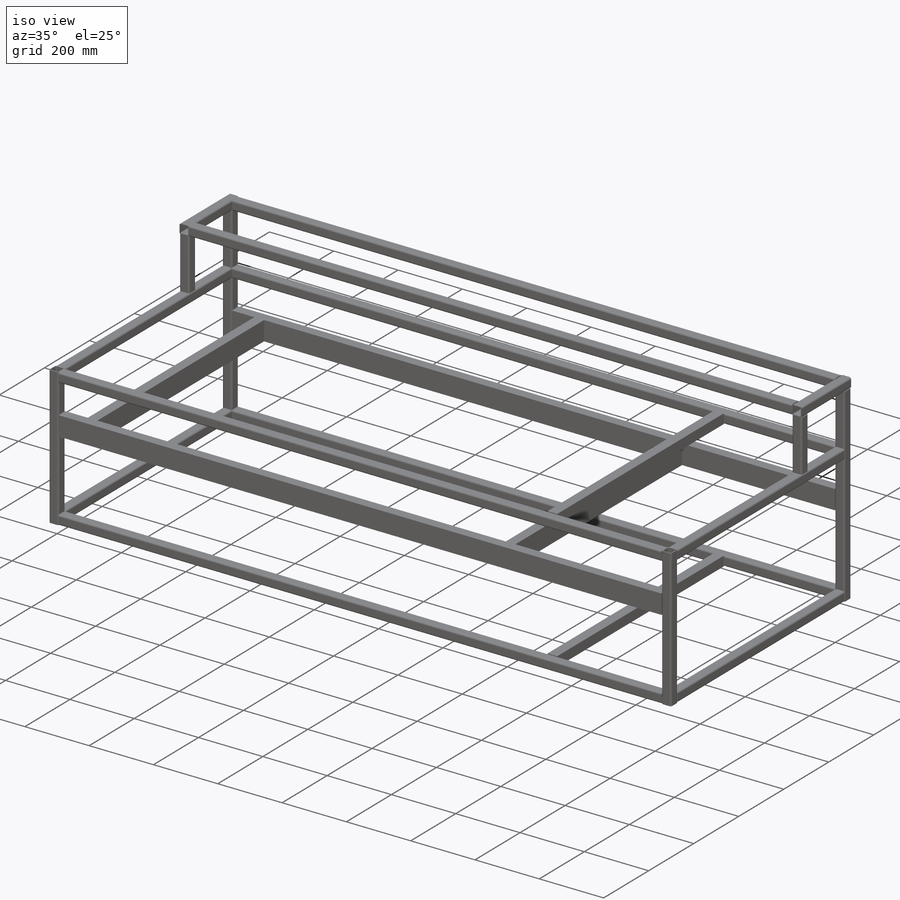
[diagram: iso view]
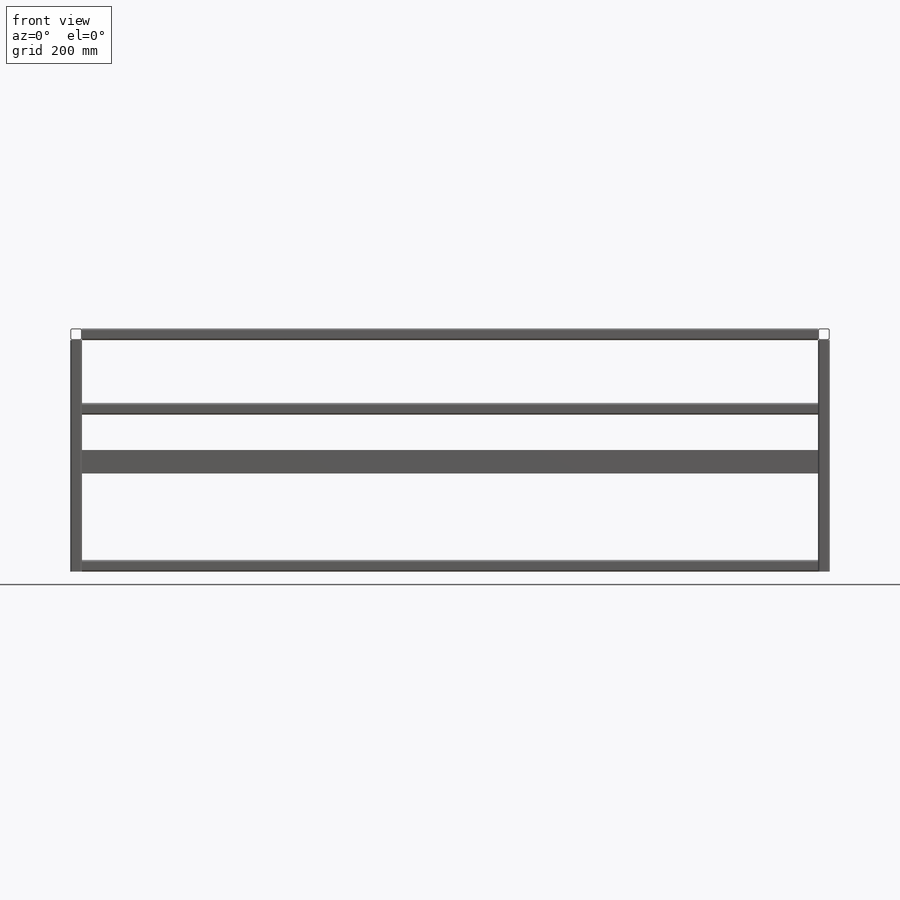
[diagram: front view]
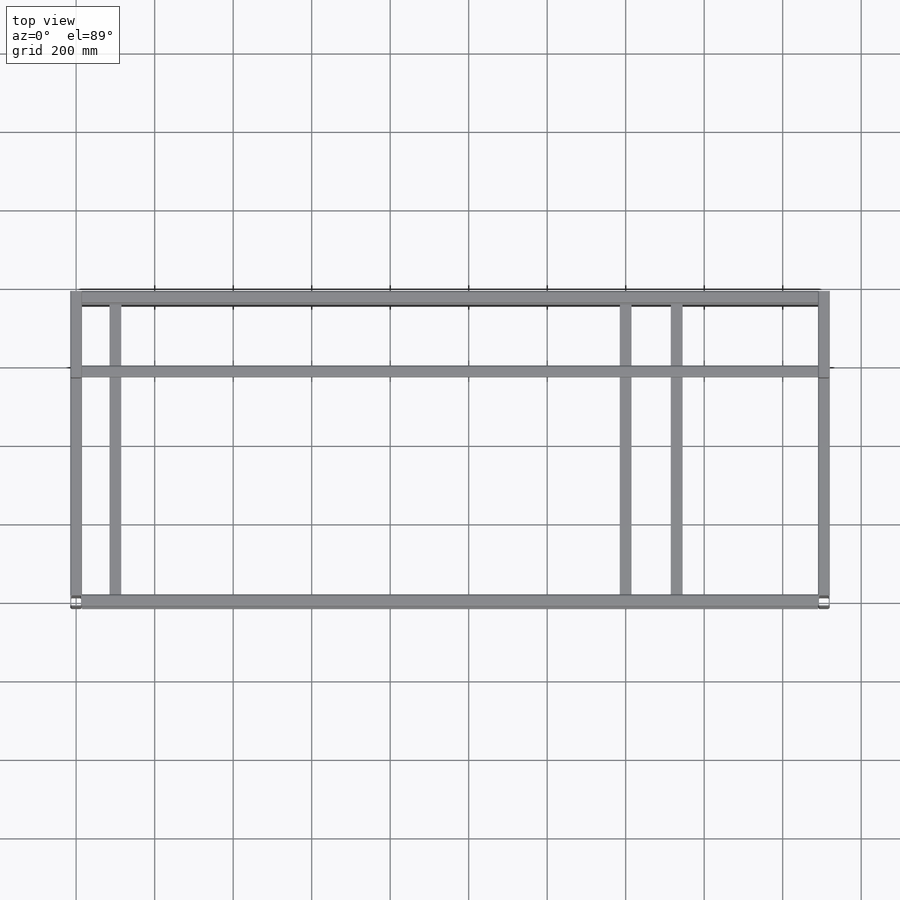
[diagram: top view]
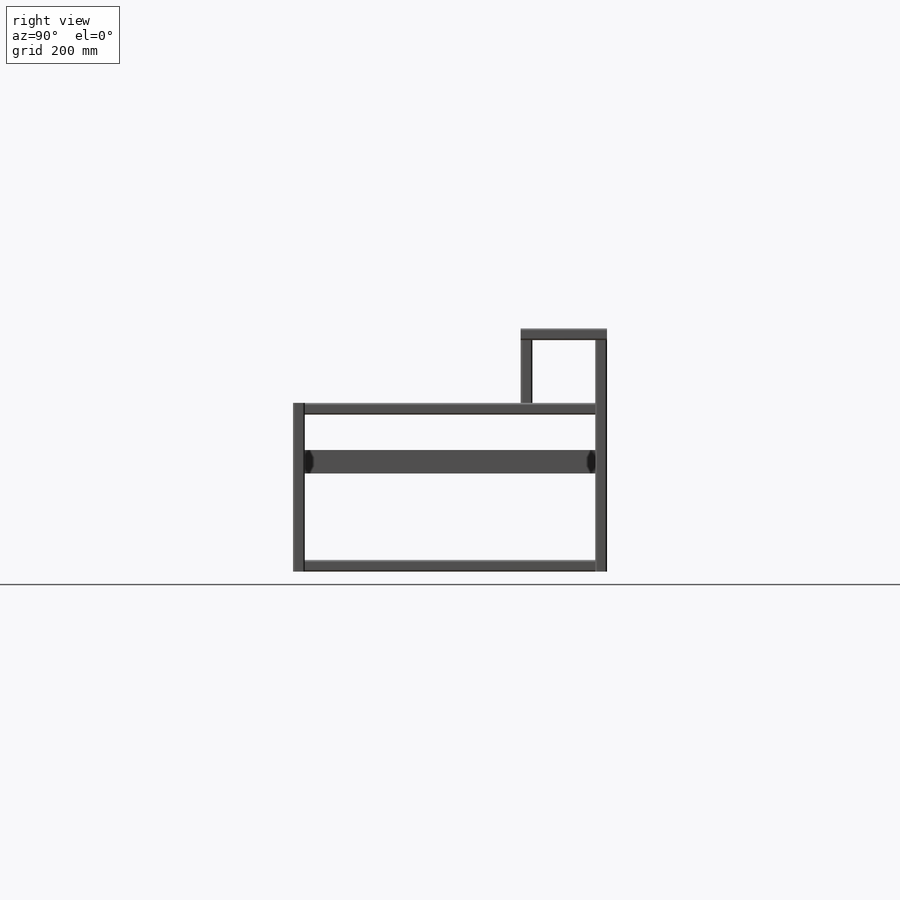
[diagram: right view]
SOLIDWORKS PART (.sldprt)
format: sldprt  version: not decoded by parser v0  size: 775,168 bytes
history: native  units: mm
features: sketch x9, plane x4, extrude x4, material x1, pattern_linear x1 + 8 further entries (+11 scaffold rows collapsed)
feature tree (38):
  scaffold x11  (default folders/planes/origin — collapsed)
  material  "Material <not specified>"
  "Cut-List-Item2"
  "Cut-List-Item3"
  "Cut-List-Item4"
  "Cut-List-Item5"
  "Cut-List-Item6"
  "Cut-List-Item7"
  "Cut-List-Item8"
  "Cut-List-Item9"
  sketch  "3DSketch1"  dims[c1.D1=~86.597281mm c1.D2=~86.597281mm c2.D1=160.0mm]
  plane  "Plane2"
  sketch  "Sketch1"  dims[c1.D1=6.35mm c1.D2=6.35mm c1.D3=6.35mm c1.D4=6.35mm c1.D5=6.35mm c1.D6=6.35mm c1.D7=6.35mm c1.D8=6.35mm c2.D1=6.604mm c2.D2=6.604mm c2.D3=6.604mm c2.D4=6.604mm c3.D1=5.2mm c3.Thickness=2.6mm c3.D4=12.9032mm c3.D5=12.9286mm c3.V_leg=30.0mm c3.H_leg=20.0mm c4.D4=50.3428mm c4.D5=50.8508mm c5.D4=~41.274964mm c5.D5=~41.274964mm]
  plane  "Plane3"
  sketch  "Sketch2"  dims[D1=30.0mm D2=60.0mm D3=120.0mm]
  extrude  "Boss-Extrude1"  [1 undecoded]
  plane  "Plane4"
  sketch  "Sketch3"  dims[D1=60.0mm D2=30.0mm D3=100.0mm D4=1300.0mm]
  extrude  "Boss-Extrude2"  [1 undecoded]
  sketch  "Sketch4"  dims[D1=0.0mm D2=0.0mm]
  extrude  "Boss-Extrude3"  Depth=160mm
  pattern_linear  "LPattern1"  Count1=2 Count2=1 Spacing1=190mm Spacing2=10mm
  sketch  "Sketch12"
  sketch  "Structural Member3"
  plane  "Plane6"
  sketch  "Sketch13"  dims[c1.D1=6.35mm c1.D2=6.35mm c1.D3=6.35mm c1.D4=6.35mm c1.D5=6.35mm c1.D6=6.35mm c1.D7=6.35mm c1.D8=6.35mm c2.D1=6.604mm c2.D2=6.604mm c2.D3=6.604mm c2.D4=6.604mm c3.D1=5.2mm c3.Thickness=2.6mm c3.D4=12.9032mm c3.D5=12.9286mm c3.V_leg=30.0mm c3.H_leg=20.0mm c4.D4=50.3428mm c4.D5=50.8508mm c5.D4=~41.274964mm c5.D5=~41.274964mm]
  sketch  "Sketch14"  dims[D1=100.0mm D2=30.0mm]
  extrude  "Boss-Extrude4"  [1 undecoded]
decode coverage: 9 of 14 modeling features carry decoded parameters; 8 rows unclassified (native names shown)
note: ~ marks probable driven/reference dimensions
note: 3 parameter values undecoded
summary: no parameter record found for 3 features
note: suppression state not decoded; provenance and decode notes live in map.json
